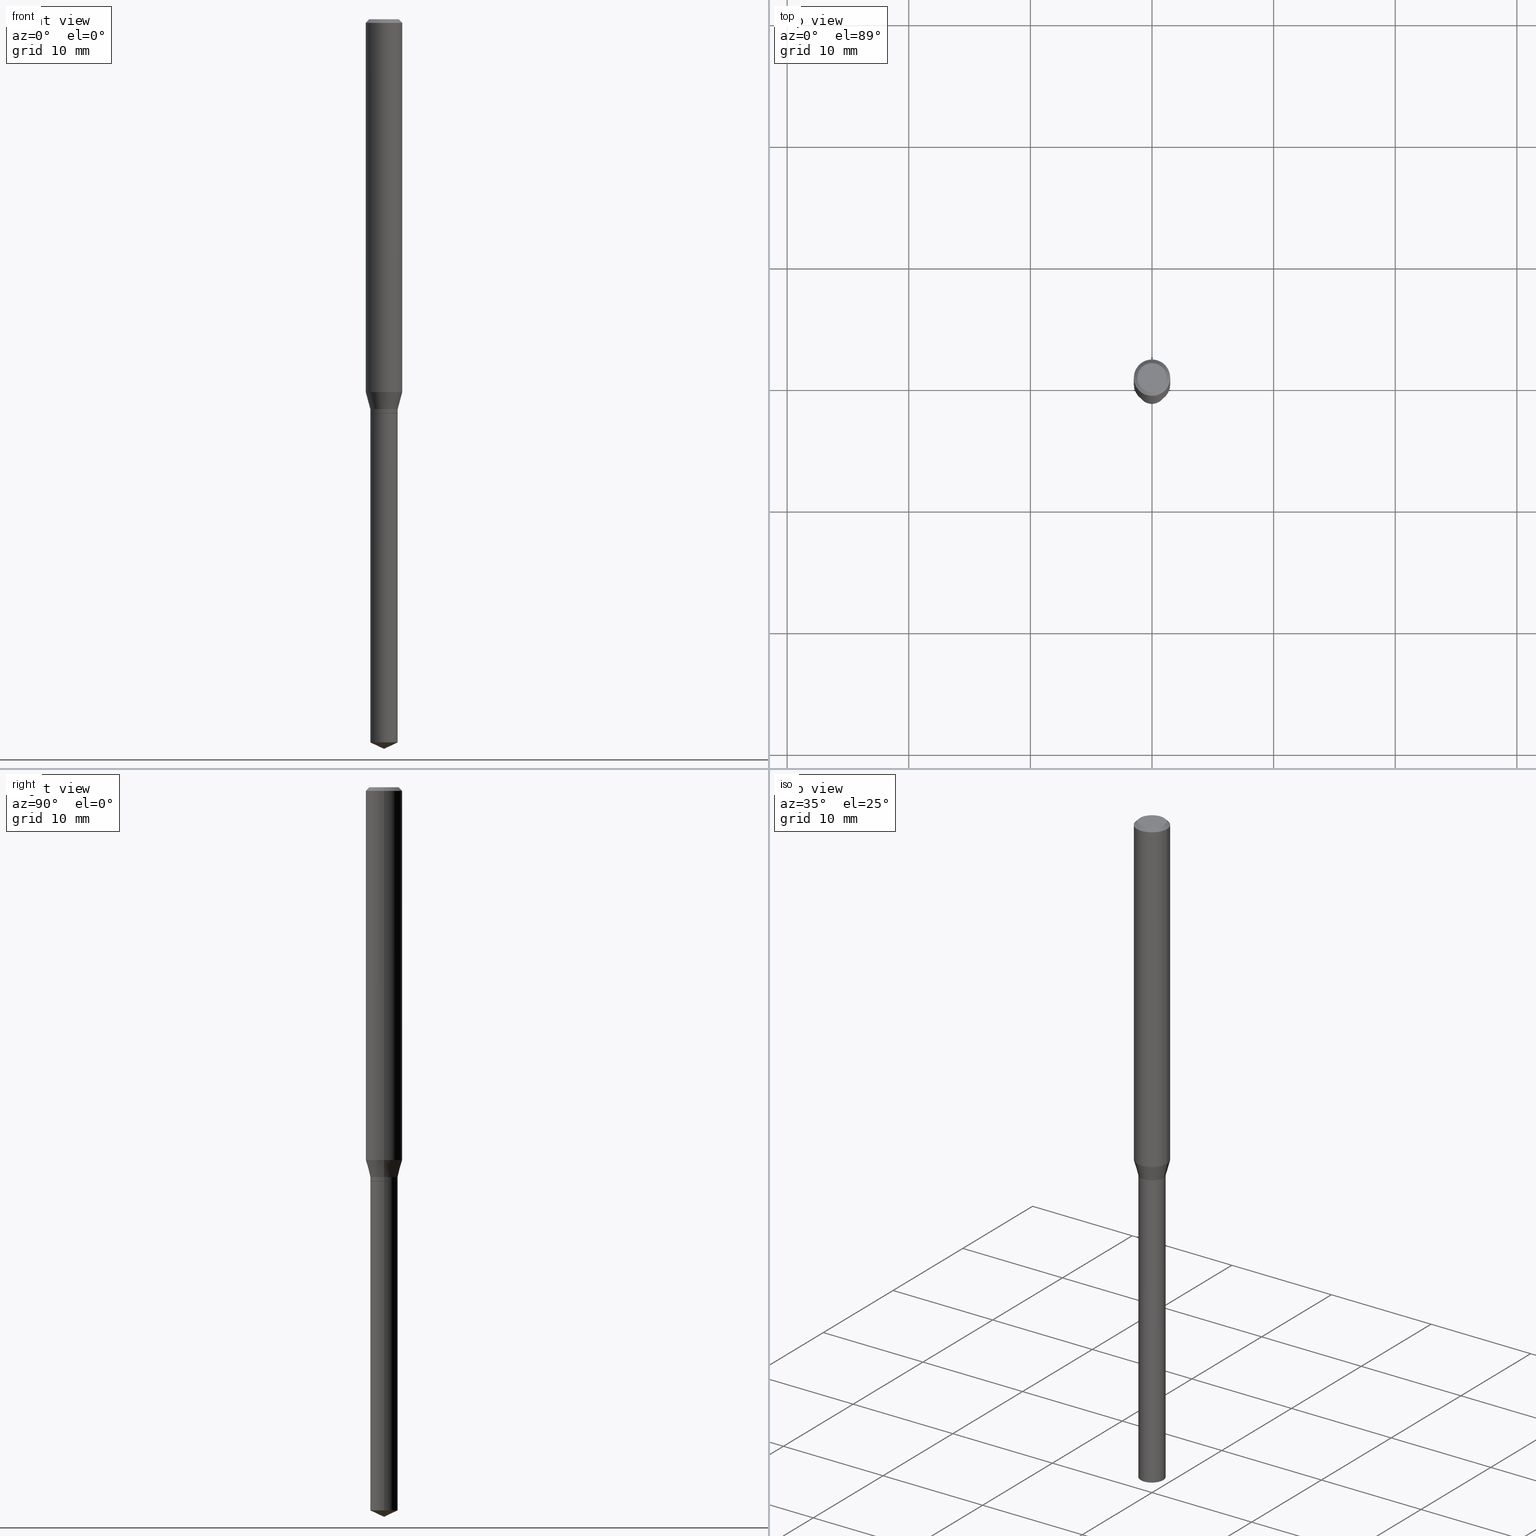
[diagram: canonical four-view strip — front | top / right | iso, engineering-drawing reading convention]
A machine part, canonical four-view strip (front | top / right | iso — engineering-drawing reading convention). The complete STEP part file that produces these views, byte-faithful:
ISO-10303-21;
HEADER;
FILE_DESCRIPTION (( 'STEP AP203' ),
    '1' );
FILE_NAME ('08197.STEP',
    '2024-04-24T13:46:05',
    ( '' ),
    ( '' ),
    'SwSTEP 2.0',
    'SolidWorks 2023',
    '' );
FILE_SCHEMA (( 'CONFIG_CONTROL_DESIGN' ));
ENDSEC;

DATA;
#1 = DIRECTION ( 'NONE',  ( 2.445468806185136597E-29, -3.491481338843145583E-15, -1.000000000000000000 ) ) ;
#2 = PLANE ( 'NONE',  #114 ) ;
#3 = VECTOR ( 'NONE', #22, 39.37007874015748854 ) ;
#4 = AXIS2_PLACEMENT_3D ( 'NONE', #166, #46, #12 ) ;
#5 = ADVANCED_FACE ( 'NONE', ( #373 ), #266, .T. ) ;
#6 = AXIS2_PLACEMENT_3D ( 'NONE', #172, #71, #102 ) ;
#7 = DIRECTION ( 'NONE',  ( 1.000000000000000000, -6.982962677686266711E-15, 0.000000000000000000 ) ) ;
#8 = EDGE_LOOP ( 'NONE', ( #482, #393 ) ) ;
#9 = CARTESIAN_POINT ( 'NONE',  ( 3.086426180286261161E-29, -4.406598597753934435E-15, -1.262100000000000222 ) ) ;
#10 = EDGE_LOOP ( 'NONE', ( #89, #58, #131 ) ) ;
#11 = EDGE_CURVE ( 'NONE', #205, #56, #146, .T. ) ;
#12 = DIRECTION ( 'NONE',  ( 1.000000000000000000, -6.982962677686269077E-15, 0.000000000000000000 ) ) ;
#13 = ORIENTED_EDGE ( 'NONE', *, *, #121, .F. ) ;
#14 = PERSON ( 'UNSPECIFIED', 'UNSPECIFIED', 'UNSPECIFIED', ('UNSPECIFIED'), ('UNSPECIFIED'), ('UNSPECIFIED') ) ;
#15 = ORIENTED_EDGE ( 'NONE', *, *, #452, .T. ) ;
#16 = DIRECTION ( 'NONE',  ( 1.000000000000000000, -6.982962677686267499E-15, 4.876176775795936353E-29 ) ) ;
#17 = ORIENTED_EDGE ( 'NONE', *, *, #129, .F. ) ;
#18 = CIRCLE ( 'NONE', #376, 0.04724000000000000421 ) ;
#19 = ORIENTED_EDGE ( 'NONE', *, *, #320, .F. ) ;
#20 = CARTESIAN_POINT ( 'NONE',  ( 3.117728181005432506E-29, -4.451289558891128871E-15, -1.274900000000000588 ) ) ;
#21 = ORIENTED_EDGE ( 'NONE', *, *, #375, .F. ) ;
#22 = DIRECTION ( 'NONE',  ( 0.2588190451025211281, 1.565188264969622954E-15, 0.9659258262890679791 ) ) ;
#23 = FACE_OUTER_BOUND ( 'NONE', #426, .T. ) ;
#24 = CIRCLE ( 'NONE', #453, 0.04430000000000001298 ) ;
#25 = CC_DESIGN_APPROVAL ( #149, ( #97 ) ) ;
#26 = CARTESIAN_POINT ( 'NONE',  ( 0.04429999999999999910, -4.762380546182051062E-15, -1.275400000000000311 ) ) ;
#27 = EDGE_CURVE ( 'NONE', #333, #280, #18, .T. ) ;
#28 = PERSON_AND_ORGANIZATION ( #14, #477 ) ;
#29 = LINE ( 'NONE', #176, #240 ) ;
#30 = DIRECTION ( 'NONE',  ( -2.445468806185136597E-29, 3.491481338843145583E-15, 1.000000000000000000 ) ) ;
#31 = COORDINATED_UNIVERSAL_TIME_OFFSET ( 5, 0, .BEHIND. ) ;
#32 = LINE ( 'NONE', #183, #427 ) ;
#33 = ADVANCED_BREP_SHAPE_REPRESENTATION ( '08197', ( #119, #246, #195 ), #454 ) ;
#34 = CALENDAR_DATE ( 2024, 24, 4 ) ;
#35 = CARTESIAN_POINT ( 'NONE',  ( 2.888098660104663766E-31, -4.123439461173779647E-17, -0.01181000000000007044 ) ) ;
#36 = DATE_AND_TIME ( #34, #191 ) ;
#37 = ADVANCED_FACE ( 'NONE', ( #98 ), #118, .T. ) ;
#38 = DIRECTION ( 'NONE',  ( -1.000000000000000000, 6.982962677686265922E-15, -4.876176775795935793E-29 ) ) ;
#39 = CARTESIAN_POINT ( 'NONE',  ( 2.888098660104663766E-31, -4.123439461173779647E-17, -0.01181000000000007044 ) ) ;
#40 = LOCAL_TIME ( 9, 46, 5.000000000000000000, #31 ) ;
#41 = DIRECTION ( 'NONE',  ( -2.445468806185136597E-29, 3.491481338843145583E-15, 1.000000000000000000 ) ) ;
#42 = CONICAL_SURFACE ( 'NONE', #485, 0.05904999999999999832, 0.7853981633974452814 ) ;
#43 = LOCAL_TIME ( 9, 46, 5.000000000000000000, #374 ) ;
#44 = DIRECTION ( 'NONE',  ( 1.000000000000000000, -6.982962677686257244E-15, 0.000000000000000000 ) ) ;
#45 = ORIENTED_EDGE ( 'NONE', *, *, #269, .T. ) ;
#46 = DIRECTION ( 'NONE',  ( -2.445468806185136597E-29, 3.491481338843145583E-15, 1.000000000000000000 ) ) ;
#47 = ORIENTED_EDGE ( 'NONE', *, *, #129, .T. ) ;
#48 = APPROVAL ( #446, 'UNSPECIFIED' ) ;
#49 = CARTESIAN_POINT ( 'NONE',  ( 3.118950915408523626E-29, -4.453035299560548797E-15, -1.275400000000000311 ) ) ;
#50 = ORIENTED_EDGE ( 'NONE', *, *, #156, .F. ) ;
#51 = AXIS2_PLACEMENT_3D ( 'NONE', #323, #307, #465 ) ;
#52 = DIRECTION ( 'NONE',  ( -2.445468806185136597E-29, 3.491481338843145583E-15, 1.000000000000000000 ) ) ;
#53 = EDGE_LOOP ( 'NONE', ( #471, #87, #462, #135 ) ) ;
#54 = CC_DESIGN_APPROVAL ( #397, ( #254 ) ) ;
#55 = EDGE_CURVE ( 'NONE', #464, #208, #29, .T. ) ;
#56 = VERTEX_POINT ( 'NONE', #444 ) ;
#57 = CARTESIAN_POINT ( 'NONE',  ( 3.118950915408523626E-29, -4.453035299560548797E-15, -1.275400000000000311 ) ) ;
#58 = ORIENTED_EDGE ( 'NONE', *, *, #163, .T. ) ;
#59 = DIRECTION ( 'NONE',  ( -2.445468806185136597E-29, 3.491481338843145583E-15, 1.000000000000000000 ) ) ;
#60 = ORIENTED_EDGE ( 'NONE', *, *, #291, .T. ) ;
#61 = PERSON_AND_ORGANIZATION ( #14, #477 ) ;
#62 = CARTESIAN_POINT ( 'NONE',  ( -0.04430000000000001298, -4.114173646380807622E-15, -1.262100000000000222 ) ) ;
#63 = LENGTH_MEASURE_WITH_UNIT ( LENGTH_MEASURE( 0.02539999999999999897 ), #293 );
#64 = ADVANCED_FACE ( 'NONE', ( #69 ), #245, .T. ) ;
#65 = VECTOR ( 'NONE', #411, 39.37007874015748143 ) ;
#66 = CARTESIAN_POINT ( 'NONE',  ( 0.04430000000000000604, -8.484099140212286517E-15, -2.341342570743733642 ) ) ;
#67 = DIRECTION ( 'NONE',  ( 1.000000000000000000, -6.982962677686269077E-15, 0.000000000000000000 ) ) ;
#68 = APPLICATION_PROTOCOL_DEFINITION ( 'international standard', 'config_control_design', 1994, #295 ) ;
#69 = FACE_OUTER_BOUND ( 'NONE', #271, .T. ) ;
#70 = PERSON_AND_ORGANIZATION_ROLE ( 'creator' ) ;
#71 = DIRECTION ( 'NONE',  ( -2.445468806185136597E-29, 3.491481338843145583E-15, 1.000000000000000000 ) ) ;
#72 = VERTEX_POINT ( 'NONE', #366 ) ;
#73 = VECTOR ( 'NONE', #338, 39.37007874015748143 ) ;
#74 = CIRCLE ( 'NONE', #326, 0.04430000000000001298 ) ;
#75 = EDGE_CURVE ( 'NONE', #207, #286, #226, .T. ) ;
#76 = CARTESIAN_POINT ( 'NONE',  ( -0.04430000000000001992, 3.147704319417245239E-16, -2.179088244982924535E-30 ) ) ;
#77 = DIRECTION ( 'NONE',  ( -0.2588190451025211281, 5.211531920934547886E-15, 0.9659258262890679791 ) ) ;
#78 = MECHANICAL_CONTEXT ( 'NONE', #309, 'mechanical' ) ;
#79 = AXIS2_PLACEMENT_3D ( 'NONE', #192, #117, #153 ) ;
#80 = EDGE_CURVE ( 'NONE', #388, #92, #111, .T. ) ;
#81 = ORIENTED_EDGE ( 'NONE', *, *, #217, .T. ) ;
#82 = FACE_OUTER_BOUND ( 'NONE', #312, .T. ) ;
#83 = CC_DESIGN_DATE_AND_TIME_ASSIGNMENT ( #112, #294, ( #343 ) ) ;
#84 = ORIENTED_EDGE ( 'NONE', *, *, #233, .F. ) ;
#85 = FACE_OUTER_BOUND ( 'NONE', #401, .T. ) ;
#86 = ORIENTED_EDGE ( 'NONE', *, *, #381, .T. ) ;
#87 = ORIENTED_EDGE ( 'NONE', *, *, #27, .F. ) ;
#88 = LINE ( 'NONE', #383, #316 ) ;
#89 = ORIENTED_EDGE ( 'NONE', *, *, #80, .F. ) ;
#90 = ORIENTED_EDGE ( 'NONE', *, *, #121, .T. ) ;
#91 = DIRECTION ( 'NONE',  ( -2.445468806185136597E-29, 3.491481338843145583E-15, 1.000000000000000000 ) ) ;
#92 = VERTEX_POINT ( 'NONE', #66 ) ;
#93 = CC_DESIGN_PERSON_AND_ORGANIZATION_ASSIGNMENT ( #264, #116, ( #258 ) ) ;
#94 = AXIS2_PLACEMENT_3D ( 'NONE', #368, #403, #442 ) ;
#95 = CARTESIAN_POINT ( 'NONE',  ( 2.951808626249396333E-29, -4.214400407937874930E-15, -1.207052250588358744 ) ) ;
#96 = ORIENTED_EDGE ( 'NONE', *, *, #163, .F. ) ;
#97 = PRODUCT_DEFINITION_FORMATION_WITH_SPECIFIED_SOURCE ( 'ANY', '', #258, .NOT_KNOWN. ) ;
#98 = FACE_OUTER_BOUND ( 'NONE', #357, .T. ) ;
#99 = CARTESIAN_POINT ( 'NONE',  ( 0.000000000000000000, 0.000000000000000000, 0.000000000000000000 ) ) ;
#100 = CALENDAR_DATE ( 2024, 24, 4 ) ;
#101 = ADVANCED_FACE ( 'NONE', ( #260 ), #257, .F. ) ;
#102 = DIRECTION ( 'NONE',  ( 1.000000000000000000, -6.982962677686257244E-15, 0.000000000000000000 ) ) ;
#103 = DIRECTION ( 'NONE',  ( -2.445468806185136597E-29, 3.491481338843145583E-15, 1.000000000000000000 ) ) ;
#104 = CARTESIAN_POINT ( 'NONE',  ( 8.265746106709734507E-48, -1.180129479067563789E-33, -3.380025165646692144E-19 ) ) ;
#105 = CC_DESIGN_PERSON_AND_ORGANIZATION_ASSIGNMENT ( #108, #70, ( #343 ) ) ;
#106 = FACE_OUTER_BOUND ( 'NONE', #200, .T. ) ;
#107 = CC_DESIGN_SECURITY_CLASSIFICATION ( #254, ( #97 ) ) ;
#108 = PERSON_AND_ORGANIZATION ( #14, #477 ) ;
#109 = CARTESIAN_POINT ( 'NONE',  ( 3.086426180286261161E-29, -4.406598597753934435E-15, -1.262100000000000222 ) ) ;
#110 = APPROVAL_DATE_TIME ( #290, #397 ) ;
#111 = LINE ( 'NONE', #138, #359 ) ;
#112 = DATE_AND_TIME ( #100, #231 ) ;
#113 = CLOSED_SHELL ( 'NONE', ( #5, #224, #64, #182, #475, #283, #308, #384, #227, #101, #199, #37 ) ) ;
#114 = AXIS2_PLACEMENT_3D ( 'NONE', #57, #216, #38 ) ;
#115 = CARTESIAN_POINT ( 'NONE',  ( 3.118950915408523626E-29, -4.453035299560548797E-15, -1.275400000000000311 ) ) ;
#116 = PERSON_AND_ORGANIZATION_ROLE ( 'design_owner' ) ;
#117 = DIRECTION ( 'NONE',  ( -2.445468806185136597E-29, 3.491481338843145583E-15, 1.000000000000000000 ) ) ;
#118 = CONICAL_SURFACE ( 'NONE', #6, 0.04379999999999999866, 0.7853981633978495136 ) ;
#119 = MANIFOLD_SOLID_BREP ( 'Body-Move/Copy2[1]', #147 ) ;
#120 = CARTESIAN_POINT ( 'NONE',  ( -0.05905000000000007465, 4.195754854663396902E-16, -2.904631170795525395E-30 ) ) ;
#121 = EDGE_CURVE ( 'NONE', #208, #470, #248, .T. ) ;
#122 = VERTEX_POINT ( 'NONE', #62 ) ;
#123 = CARTESIAN_POINT ( 'NONE',  ( 3.086426180286261161E-29, -4.406598597753934435E-15, -1.262100000000000222 ) ) ;
#124 = EDGE_LOOP ( 'NONE', ( #416, #385, #278, #126 ) ) ;
#125 = AXIS2_PLACEMENT_3D ( 'NONE', #179, #59, #251 ) ;
#126 = ORIENTED_EDGE ( 'NONE', *, *, #244, .F. ) ;
#127 = AXIS2_PLACEMENT_3D ( 'NONE', #350, #306, #198 ) ;
#128 = DIRECTION ( 'NONE',  ( -2.445468806185136597E-29, 3.491481338843145583E-15, 1.000000000000000000 ) ) ;
#129 = EDGE_CURVE ( 'NONE', #205, #464, #32, .T. ) ;
#130 = LINE ( 'NONE', #197, #136 ) ;
#131 = ORIENTED_EDGE ( 'NONE', *, *, #381, .F. ) ;
#132 = VERTEX_POINT ( 'NONE', #26 ) ;
#133 = AXIS2_PLACEMENT_3D ( 'NONE', #489, #1, #349 ) ;
#134 = FACE_OUTER_BOUND ( 'NONE', #391, .T. ) ;
#135 = ORIENTED_EDGE ( 'NONE', *, *, #75, .T. ) ;
#136 = VECTOR ( 'NONE', #389, 39.37007874015748143 ) ;
#137 = EDGE_CURVE ( 'NONE', #72, #353, #215, .T. ) ;
#138 = CARTESIAN_POINT ( 'NONE',  ( 5.776197320209293305E-29, -8.246878922347511025E-15, -2.362000000000000099 ) ) ;
#139 = CYLINDRICAL_SURFACE ( 'NONE', #155, 0.04430000000000001992 ) ;
#140 = APPROVAL_STATUS ( 'not_yet_approved' ) ;
#141 = DIMENSIONAL_EXPONENTS ( 1.000000000000000000, 0.000000000000000000, 0.000000000000000000, 0.000000000000000000, 0.000000000000000000, 0.000000000000000000, 0.000000000000000000 ) ;
#142 = PRODUCT_RELATED_PRODUCT_CATEGORY ( 'detail', '', ( #258 ) ) ;
#143 = DIRECTION ( 'NONE',  ( -2.445468806185136597E-29, 3.491481338843145583E-15, 1.000000000000000000 ) ) ;
#144 = COORDINATED_UNIVERSAL_TIME_OFFSET ( 5, 0, .BEHIND. ) ;
#145 = CARTESIAN_POINT ( 'NONE',  ( 5.776197320209293305E-29, -8.246878922347511025E-15, -2.362000000000000099 ) ) ;
#146 = CIRCLE ( 'NONE', #284, 0.04379999999999999866 ) ;
#147 = CLOSED_SHELL ( 'NONE', ( #449, #415, #466, #360, #402 ) ) ;
#148 = DIRECTION ( 'NONE',  ( 1.000000000000000000, -6.982962677686266711E-15, 0.000000000000000000 ) ) ;
#149 = APPROVAL ( #185, 'UNSPECIFIED' ) ;
#150 = PERSON_AND_ORGANIZATION ( #14, #477 ) ;
#151 = DIRECTION ( 'NONE',  ( 1.000000000000000000, -6.982962677686269077E-15, 0.000000000000000000 ) ) ;
#152 = LINE ( 'NONE', #76, #154 ) ;
#153 = DIRECTION ( 'NONE',  ( 1.000000000000000000, -6.982962677686266711E-15, 4.876185090822587894E-29 ) ) ;
#154 = VECTOR ( 'NONE', #456, 39.37007874015748143 ) ;
#155 = AXIS2_PLACEMENT_3D ( 'NONE', #99, #30, #253 ) ;
#156 = EDGE_CURVE ( 'NONE', #470, #310, #297, .T. ) ;
#157 = DIRECTION ( 'NONE',  ( 1.000000000000000000, -6.982962677686269077E-15, 0.000000000000000000 ) ) ;
#158 = CC_DESIGN_PERSON_AND_ORGANIZATION_ASSIGNMENT ( #61, #175, ( #97 ) ) ;
#159 = PLANE ( 'NONE',  #51 ) ;
#160 = ORIENTED_EDGE ( 'NONE', *, *, #329, .F. ) ;
#161 = DIRECTION ( 'NONE',  ( -2.445468806185136597E-29, 3.491481338843145583E-15, 1.000000000000000000 ) ) ;
#162 = EDGE_LOOP ( 'NONE', ( #170, #395, #21, #17 ) ) ;
#163 = EDGE_CURVE ( 'NONE', #388, #72, #483, .T. ) ;
#164 = CONICAL_SURFACE ( 'NONE', #409, 0.04430000000000001298, 0.2617993877991498519 ) ;
#165 = CC_DESIGN_APPROVAL ( #48, ( #343 ) ) ;
#166 = CARTESIAN_POINT ( 'NONE',  ( 3.118950915408523626E-29, -4.453035299560548797E-15, -1.275400000000000311 ) ) ;
#167 = ORIENTED_EDGE ( 'NONE', *, *, #255, .T. ) ;
#168 = ORIENTED_EDGE ( 'NONE', *, *, #460, .T. ) ;
#169 = CYLINDRICAL_SURFACE ( 'NONE', #4, 0.04429999999999999910 ) ;
#170 = ORIENTED_EDGE ( 'NONE', *, *, #11, .T. ) ;
#171 = LINE ( 'NONE', #249, #204 ) ;
#172 = CARTESIAN_POINT ( 'NONE',  ( 3.118950915408523626E-29, -4.453035299560548797E-15, -1.275400000000000311 ) ) ;
#173 = CIRCLE ( 'NONE', #436, 0.04429999999999999910 ) ;
#174 = EDGE_LOOP ( 'NONE', ( #433, #168, #50, #13 ) ) ;
#175 = PERSON_AND_ORGANIZATION_ROLE ( 'creator' ) ;
#176 = CARTESIAN_POINT ( 'NONE',  ( 0.04430000000000001992, -3.093452466215017723E-16, 2.160146311677600784E-30 ) ) ;
#177 = CARTESIAN_POINT ( 'NONE',  ( -9.050210213589845843E-28, 1.292130163076976058E-13, 37.00807874015747956 ) ) ;
#178 = PRODUCT_DEFINITION_SHAPE ( 'NONE', 'NONE',  #343 ) ;
#179 = CARTESIAN_POINT ( 'NONE',  ( 0.000000000000000000, 0.000000000000000000, 0.000000000000000000 ) ) ;
#180 = CARTESIAN_POINT ( 'NONE',  ( -0.04379999999999999866, -4.141817581297625270E-15, -1.275400000000000311 ) ) ;
#181 = CALENDAR_DATE ( 2024, 24, 4 ) ;
#182 = ADVANCED_FACE ( 'NONE', ( #448 ), #476, .T. ) ;
#183 = CARTESIAN_POINT ( 'NONE',  ( 0.04379999999999999866, -4.758889064843207266E-15, -1.275400000000000311 ) ) ;
#184 = CIRCLE ( 'NONE', #252, 0.04430000000000001992 ) ;
#185 = APPROVAL_STATUS ( 'not_yet_approved' ) ;
#186 = DIRECTION ( 'NONE',  ( 1.000000000000000000, -6.982962677686266711E-15, 4.876185090822587894E-29 ) ) ;
#187 = CALENDAR_DATE ( 2024, 24, 4 ) ;
#188 = EDGE_CURVE ( 'NONE', #286, #207, #274, .T. ) ;
#189 = DIRECTION ( 'NONE',  ( -2.445468806185136597E-29, 3.491481338843145583E-15, 1.000000000000000000 ) ) ;
#190 = AXIS2_PLACEMENT_3D ( 'NONE', #212, #438, #327 ) ;
#191 = LOCAL_TIME ( 9, 46, 5.000000000000000000, #223 ) ;
#192 = CARTESIAN_POINT ( 'NONE',  ( 8.265746106709734507E-48, -1.180129479067563789E-33, -3.380025165646692144E-19 ) ) ;
#193 = DESIGN_CONTEXT ( 'detailed design', #295, 'design' ) ;
#194 = CARTESIAN_POINT ( 'NONE',  ( -0.04429999999999999910, -5.999124164633942099E-15, -1.275400000000000311 ) ) ;
#195 = AXIS2_PLACEMENT_3D ( 'NONE', #332, #445, #420 ) ;
#196 = ORIENTED_EDGE ( 'NONE', *, *, #244, .T. ) ;
#197 = CARTESIAN_POINT ( 'NONE',  ( 0.04429999999999999910, -4.762380546182051062E-15, -1.275400000000000311 ) ) ;
#198 = DIRECTION ( 'NONE',  ( 1.000000000000000000, -6.982962677686265922E-15, 0.000000000000000000 ) ) ;
#199 = ADVANCED_FACE ( 'NONE', ( #382 ), #159, .F. ) ;
#200 = EDGE_LOOP ( 'NONE', ( #86, #273, #237, #160 ) ) ;
#201 = DIRECTION ( 'NONE',  ( -2.445468806185136877E-29, 3.491481338843145188E-15, 1.000000000000000000 ) ) ;
#202 = ORIENTED_EDGE ( 'NONE', *, *, #80, .T. ) ;
#203 = AXIS2_PLACEMENT_3D ( 'NONE', #49, #128, #430 ) ;
#204 = VECTOR ( 'NONE', #77, 39.37007874015748854 ) ;
#205 = VERTEX_POINT ( 'NONE', #313 ) ;
#206 = DIRECTION ( 'NONE',  ( 1.000000000000000000, -6.982962677686266711E-15, 4.876176775795936353E-29 ) ) ;
#207 = VERTEX_POINT ( 'NONE', #235 ) ;
#208 = VERTEX_POINT ( 'NONE', #342 ) ;
#209 = DIRECTION ( 'NONE',  ( -2.445468806185136877E-29, 3.491481338843145188E-15, 1.000000000000000000 ) ) ;
#210 = EDGE_CURVE ( 'NONE', #280, #333, #351, .T. ) ;
#211 = PERSON_AND_ORGANIZATION ( #14, #477 ) ;
#212 = CARTESIAN_POINT ( 'NONE',  ( 3.118950915408523626E-29, -4.453035299560548797E-15, -1.275400000000000311 ) ) ;
#213 = AXIS2_PLACEMENT_3D ( 'NONE', #481, #143, #334 ) ;
#214 = APPROVAL_PERSON_ORGANIZATION ( #28, #48, #440 ) ;
#215 = LINE ( 'NONE', #331, #73 ) ;
#216 = DIRECTION ( 'NONE',  ( 2.438088387897960049E-29, -3.491481338843145188E-15, -1.000000000000000000 ) ) ;
#217 = EDGE_CURVE ( 'NONE', #390, #122, #152, .T. ) ;
#218 = PERSON_AND_ORGANIZATION_ROLE ( 'classification_officer' ) ;
#219 = DIRECTION ( 'NONE',  ( 0.7071067811868312347, -2.468850131085228700E-15, 0.7071067811862637997 ) ) ;
#220 = APPROVAL_ROLE ( '' ) ;
#221 = DIRECTION ( 'NONE',  ( -2.445468806185136597E-29, 3.491481338843145583E-15, 1.000000000000000000 ) ) ;
#222 = CONICAL_SURFACE ( 'NONE', #133, 0.05904999999999999832, 0.7853981633974452814 ) ;
#223 = COORDINATED_UNIVERSAL_TIME_OFFSET ( 5, 0, .BEHIND. ) ;
#224 = ADVANCED_FACE ( 'NONE', ( #457 ), #222, .T. ) ;
#225 = DIRECTION ( 'NONE',  ( -2.445468806185136597E-29, 3.491481338843145583E-15, 1.000000000000000000 ) ) ;
#226 = CIRCLE ( 'NONE', #345, 0.05904999999999999832 ) ;
#227 = ADVANCED_FACE ( 'NONE', ( #451 ), #42, .T. ) ;
#228 = CARTESIAN_POINT ( 'NONE',  ( 0.05904999999999999832, -4.535783407291118600E-16, -0.01181000000000007044 ) ) ;
#229 = ORIENTED_EDGE ( 'NONE', *, *, #55, .T. ) ;
#230 = DIRECTION ( 'NONE',  ( -2.445468806185136597E-29, 3.491481338843145583E-15, 1.000000000000000000 ) ) ;
#231 = LOCAL_TIME ( 9, 46, 5.000000000000000000, #144 ) ;
#232 = ORIENTED_EDGE ( 'NONE', *, *, #303, .T. ) ;
#233 = EDGE_CURVE ( 'NONE', #72, #92, #173, .T. ) ;
#234 = CARTESIAN_POINT ( 'NONE',  ( 0.05905000000000007465, -4.123439461173745750E-16, 2.879382386107504074E-30 ) ) ;
#235 = CARTESIAN_POINT ( 'NONE',  ( -0.05904999999999999832, -1.708241915808465850E-15, -0.01181000000000007044 ) ) ;
#236 = DIRECTION ( 'NONE',  ( -2.445468806185136597E-29, 3.491481338843145583E-15, 1.000000000000000000 ) ) ;
#237 = ORIENTED_EDGE ( 'NONE', *, *, #441, .F. ) ;
#238 = ORIENTED_EDGE ( 'NONE', *, *, #188, .T. ) ;
#239 = CYLINDRICAL_SURFACE ( 'NONE', #285, 0.05905000000000007465 ) ;
#240 = VECTOR ( 'NONE', #209, 39.37007874015748143 ) ;
#241 = CIRCLE ( 'NONE', #437, 0.04429999999999999910 ) ;
#242 = ORIENTED_EDGE ( 'NONE', *, *, #217, .F. ) ;
#243 = ORIENTED_EDGE ( 'NONE', *, *, #460, .F. ) ;
#244 = EDGE_CURVE ( 'NONE', #353, #132, #417, .T. ) ;
#245 = CYLINDRICAL_SURFACE ( 'NONE', #125, 0.05905000000000007465 ) ;
#246 = MANIFOLD_SOLID_BREP ( 'Body-Move/Copy2[2]', #113 ) ;
#247 = COORDINATED_UNIVERSAL_TIME_OFFSET ( 5, 0, .BEHIND. ) ;
#248 = LINE ( 'NONE', #406, #3 ) ;
#249 = CARTESIAN_POINT ( 'NONE',  ( -0.04430000000000001298, -4.091828165812210010E-15, -1.262100000000000222 ) ) ;
#250 = PERSON_AND_ORGANIZATION ( #14, #477 ) ;
#251 = DIRECTION ( 'NONE',  ( 1.000000000000000000, -6.982962677686266711E-15, 4.876176775795936353E-29 ) ) ;
#252 = AXIS2_PLACEMENT_3D ( 'NONE', #20, #318, #281 ) ;
#253 = DIRECTION ( 'NONE',  ( 1.000000000000000000, -6.982962677686267499E-15, 4.876176775795936353E-29 ) ) ;
#254 = SECURITY_CLASSIFICATION ( '', '', #330 ) ;
#255 = EDGE_CURVE ( 'NONE', #122, #208, #24, .T. ) ;
#256 = PERSON_AND_ORGANIZATION_ROLE ( 'design_supplier' ) ;
#257 = PLANE ( 'NONE',  #94 ) ;
#258 = PRODUCT ( '08197', '08197', '', ( #78 ) ) ;
#259 = DATE_AND_TIME ( #187, #43 ) ;
#260 = FACE_OUTER_BOUND ( 'NONE', #8, .T. ) ;
#261 = AXIS2_PLACEMENT_3D ( 'NONE', #450, #221, #377 ) ;
#262 = CIRCLE ( 'NONE', #459, 0.05905000000000015098 ) ;
#263 = CARTESIAN_POINT ( 'NONE',  ( 3.118950915408523626E-29, -4.453035299560548797E-15, -1.275400000000000311 ) ) ;
#264 = PERSON_AND_ORGANIZATION ( #14, #477 ) ;
#265 = EDGE_CURVE ( 'NONE', #310, #207, #311, .T. ) ;
#266 = CONICAL_SURFACE ( 'NONE', #190, 0.04379999999999999866, 0.7853981633978495136 ) ;
#267 = APPROVAL_PERSON_ORGANIZATION ( #211, #397, #372 ) ;
#268 = CARTESIAN_POINT ( 'NONE',  ( 0.04724000000000000421, -3.852183633974369345E-16, -3.380025165621689721E-19 ) ) ;
#269 = EDGE_CURVE ( 'NONE', #56, #205, #301, .T. ) ;
#270 = UNCERTAINTY_MEASURE_WITH_UNIT (LENGTH_MEASURE( 1.000000000000000082E-05 ), #344, 'distance_accuracy_value', 'NONE');
#271 = EDGE_LOOP ( 'NONE', ( #315, #355, #488, #324 ) ) ;
#272 = DIRECTION ( 'NONE',  ( 1.000000000000000000, -6.982962677686266711E-15, 0.000000000000000000 ) ) ;
#273 = ORIENTED_EDGE ( 'NONE', *, *, #137, .T. ) ;
#274 = CIRCLE ( 'NONE', #261, 0.05904999999999999832 ) ;
#275 = CONICAL_SURFACE ( 'NONE', #423, 84.42940631927434936, 1.134464013796316006 ) ;
#276 = ORIENTED_EDGE ( 'NONE', *, *, #255, .F. ) ;
#277 = CARTESIAN_POINT ( 'NONE',  ( 3.086426180286261161E-29, -4.406598597753934435E-15, -1.262100000000000222 ) ) ;
#278 = ORIENTED_EDGE ( 'NONE', *, *, #329, .T. ) ;
#279 = DIRECTION ( 'NONE',  ( 1.000000000000000000, -6.982962677686269077E-15, 0.000000000000000000 ) ) ;
#280 = VERTEX_POINT ( 'NONE', #268 ) ;
#281 = DIRECTION ( 'NONE',  ( 1.000000000000000000, -6.982962677686265922E-15, 0.000000000000000000 ) ) ;
#282 = EDGE_LOOP ( 'NONE', ( #363, #399 ) ) ;
#283 = ADVANCED_FACE ( 'NONE', ( #85 ), #434, .T. ) ;
#284 = AXIS2_PLACEMENT_3D ( 'NONE', #414, #370, #299 ) ;
#285 = AXIS2_PLACEMENT_3D ( 'NONE', #394, #52, #206 ) ;
#286 = VERTEX_POINT ( 'NONE', #228 ) ;
#287 = DIRECTION ( 'NONE',  ( 1.000000000000000000, -6.982962677686266711E-15, 0.000000000000000000 ) ) ;
#288 = DIRECTION ( 'NONE',  ( 1.000000000000000000, -6.982962677686266711E-15, 0.000000000000000000 ) ) ;
#289 = DIRECTION ( 'NONE',  ( -2.445468806185136597E-29, 3.491481338843145583E-15, 1.000000000000000000 ) ) ;
#290 = DATE_AND_TIME ( #181, #40 ) ;
#291 = EDGE_CURVE ( 'NONE', #390, #464, #184, .T. ) ;
#292 = ORIENTED_EDGE ( 'NONE', *, *, #55, .F. ) ;
#293 =( LENGTH_UNIT ( ) NAMED_UNIT ( * ) SI_UNIT ( $, .METRE. ) );
#294 = DATE_TIME_ROLE ( 'creation_date' ) ;
#295 = APPLICATION_CONTEXT ( 'configuration controlled 3d designs of mechanical parts and assemblies' ) ;
#296 = DIRECTION ( 'NONE',  ( -0.9063077870366507138, 7.915267918739014631E-15, 0.4226182617406978315 ) ) ;
#297 = CIRCLE ( 'NONE', #213, 0.05905000000000015098 ) ;
#298 = CIRCLE ( 'NONE', #127, 0.04430000000000001992 ) ;
#299 = DIRECTION ( 'NONE',  ( 1.000000000000000000, -6.982962677686257244E-15, 0.000000000000000000 ) ) ;
#300 =( NAMED_UNIT ( * ) SI_UNIT ( $, .STERADIAN. ) SOLID_ANGLE_UNIT ( ) );
#301 = CIRCLE ( 'NONE', #337, 0.04379999999999999866 ) ;
#302 = CC_DESIGN_PERSON_AND_ORGANIZATION_ASSIGNMENT ( #150, #256, ( #97 ) ) ;
#303 = EDGE_CURVE ( 'NONE', #470, #286, #424, .T. ) ;
#304 = VECTOR ( 'NONE', #296, 39.37007874015748143 ) ;
#305 = CIRCLE ( 'NONE', #378, 0.04429999999999999910 ) ;
#306 = DIRECTION ( 'NONE',  ( -2.445468806185136597E-29, 3.491481338843145583E-15, 1.000000000000000000 ) ) ;
#307 = DIRECTION ( 'NONE',  ( -2.438088387897960049E-29, 3.491481338843145188E-15, 1.000000000000000000 ) ) ;
#308 = ADVANCED_FACE ( 'NONE', ( #82 ), #164, .T. ) ;
#309 = APPLICATION_CONTEXT ( 'configuration controlled 3d designs of mechanical parts and assemblies' ) ;
#310 = VERTEX_POINT ( 'NONE', #354 ) ;
#311 = LINE ( 'NONE', #120, #447 ) ;
#312 = EDGE_LOOP ( 'NONE', ( #243, #167, #90, #322 ) ) ;
#313 = CARTESIAN_POINT ( 'NONE',  ( 0.04379999999999999866, -4.758889064843207266E-15, -1.275400000000000311 ) ) ;
#314 = CARTESIAN_POINT ( 'NONE',  ( 0.000000000000000000, 0.000000000000000000, 0.000000000000000000 ) ) ;
#315 = ORIENTED_EDGE ( 'NONE', *, *, #156, .T. ) ;
#316 = VECTOR ( 'NONE', #392, 39.37007874015748143 ) ;
#317 = AXIS2_PLACEMENT_3D ( 'NONE', #177, #225, #484 ) ;
#318 = DIRECTION ( 'NONE',  ( -2.445468806185136597E-29, 3.491481338843145583E-15, 1.000000000000000000 ) ) ;
#319 = ORIENTED_EDGE ( 'NONE', *, *, #375, .T. ) ;
#320 = EDGE_CURVE ( 'NONE', #333, #207, #88, .T. ) ;
#321 = DIRECTION ( 'NONE',  ( 1.000000000000000000, -6.982962677686266711E-15, 0.000000000000000000 ) ) ;
#322 = ORIENTED_EDGE ( 'NONE', *, *, #452, .F. ) ;
#323 = CARTESIAN_POINT ( 'NONE',  ( 3.118950915408523626E-29, -4.453035299560548797E-15, -1.275400000000000311 ) ) ;
#324 = ORIENTED_EDGE ( 'NONE', *, *, #303, .F. ) ;
#325 = CARTESIAN_POINT ( 'NONE',  ( 0.05905000000000015098, -4.626744354055249850E-15, -1.207052250588358744 ) ) ;
#326 = AXIS2_PLACEMENT_3D ( 'NONE', #9, #91, #272 ) ;
#327 = DIRECTION ( 'NONE',  ( 1.000000000000000000, -6.982962677686257244E-15, 0.000000000000000000 ) ) ;
#328 = APPLICATION_PROTOCOL_DEFINITION ( 'international standard', 'config_control_design', 1994, #309 ) ;
#329 = EDGE_CURVE ( 'NONE', #92, #132, #130, .T. ) ;
#330 = SECURITY_CLASSIFICATION_LEVEL ( 'unclassified' ) ;
#331 = CARTESIAN_POINT ( 'NONE',  ( -0.04429999999999999910, -4.138264867618825161E-15, -1.275400000000000311 ) ) ;
#332 = CARTESIAN_POINT ( 'NONE',  ( 0.000000000000000000, 0.000000000000000000, 0.000000000000000000 ) ) ;
#333 = VERTEX_POINT ( 'NONE', #386 ) ;
#334 = DIRECTION ( 'NONE',  ( 1.000000000000000000, -6.982962677686271444E-15, 0.000000000000000000 ) ) ;
#335 = DIRECTION ( 'NONE',  ( 1.000000000000000000, -6.982962677686271444E-15, 0.000000000000000000 ) ) ;
#336 = SHAPE_DEFINITION_REPRESENTATION ( #178, #33 ) ;
#337 = AXIS2_PLACEMENT_3D ( 'NONE', #358, #236, #44 ) ;
#338 = DIRECTION ( 'NONE',  ( -2.445468806185136877E-29, 3.491481338843145188E-15, 1.000000000000000000 ) ) ;
#339 = ORIENTED_EDGE ( 'NONE', *, *, #210, .F. ) ;
#340 = APPROVAL_DATE_TIME ( #259, #149 ) ;
#341 = DIRECTION ( 'NONE',  ( -2.445468806185136597E-29, 3.491481338843145583E-15, 1.000000000000000000 ) ) ;
#342 = CARTESIAN_POINT ( 'NONE',  ( 0.04430000000000001298, -4.715943844375435912E-15, -1.262100000000000222 ) ) ;
#343 = PRODUCT_DEFINITION ( 'UNKNOWN', '', #97, #193 ) ;
#344 =( CONVERSION_BASED_UNIT ( 'INCH', #63 ) LENGTH_UNIT ( ) NAMED_UNIT ( #141 ) );
#345 = AXIS2_PLACEMENT_3D ( 'NONE', #35, #341, #288 ) ;
#346 = DIRECTION ( 'NONE',  ( 2.445468806185136597E-29, -3.491481338843145583E-15, -1.000000000000000000 ) ) ;
#347 = CONICAL_SURFACE ( 'NONE', #317, 84.42940631927434936, 1.134464013796316006 ) ;
#348 = EDGE_CURVE ( 'NONE', #208, #122, #74, .T. ) ;
#349 = DIRECTION ( 'NONE',  ( -1.000000000000000000, 6.982962677686266711E-15, 0.000000000000000000 ) ) ;
#350 = CARTESIAN_POINT ( 'NONE',  ( 3.117728181005432506E-29, -4.451289558891128871E-15, -1.274900000000000588 ) ) ;
#351 = CIRCLE ( 'NONE', #79, 0.04724000000000000421 ) ;
#352 = VECTOR ( 'NONE', #371, 39.37007874015748143 ) ;
#353 = VERTEX_POINT ( 'NONE', #194 ) ;
#354 = CARTESIAN_POINT ( 'NONE',  ( -0.05905000000000015098, -3.794824922471535437E-15, -1.207052250588358744 ) ) ;
#355 = ORIENTED_EDGE ( 'NONE', *, *, #265, .T. ) ;
#356 = DIRECTION ( 'NONE',  ( -2.445468806185136597E-29, 3.491481338843145583E-15, 1.000000000000000000 ) ) ;
#357 = EDGE_LOOP ( 'NONE', ( #428, #45, #47, #412 ) ) ;
#358 = CARTESIAN_POINT ( 'NONE',  ( 3.118950915408523626E-29, -4.453035299560548797E-15, -1.275400000000000311 ) ) ;
#359 = VECTOR ( 'NONE', #410, 39.37007874015748143 ) ;
#360 = ADVANCED_FACE ( 'NONE', ( #472 ), #169, .T. ) ;
#361 = ORIENTED_EDGE ( 'NONE', *, *, #419, .T. ) ;
#362 = CARTESIAN_POINT ( 'NONE',  ( 5.776197320209293305E-29, -8.246878922347511025E-15, -2.362000000000000099 ) ) ;
#363 = ORIENTED_EDGE ( 'NONE', *, *, #11, .F. ) ;
#364 = ORIENTED_EDGE ( 'NONE', *, *, #75, .F. ) ;
#365 = CARTESIAN_POINT ( 'NONE',  ( 0.04430000000000001992, -4.760634805512630348E-15, -1.274900000000000588 ) ) ;
#366 = CARTESIAN_POINT ( 'NONE',  ( -0.04430000000000000604, -7.859983461649060616E-15, -2.341342570743733642 ) ) ;
#367 = FACE_OUTER_BOUND ( 'NONE', #474, .T. ) ;
#368 = CARTESIAN_POINT ( 'NONE',  ( 4.132873053354867254E-48, -5.900647395337818946E-34, -1.690012582823346072E-19 ) ) ;
#369 =( NAMED_UNIT ( * ) PLANE_ANGLE_UNIT ( ) SI_UNIT ( $, .RADIAN. ) );
#370 = DIRECTION ( 'NONE',  ( -2.445468806185136597E-29, 3.491481338843145583E-15, 1.000000000000000000 ) ) ;
#371 = DIRECTION ( 'NONE',  ( 0.7071067811865453523, -7.319954787623248157E-15, -0.7071067811865496822 ) ) ;
#372 = APPROVAL_ROLE ( '' ) ;
#373 = FACE_OUTER_BOUND ( 'NONE', #162, .T. ) ;
#374 = COORDINATED_UNIVERSAL_TIME_OFFSET ( 5, 0, .BEHIND. ) ;
#375 = EDGE_CURVE ( 'NONE', #464, #390, #298, .T. ) ;
#376 = AXIS2_PLACEMENT_3D ( 'NONE', #104, #487, #186 ) ;
#377 = DIRECTION ( 'NONE',  ( 1.000000000000000000, -6.982962677686266711E-15, 0.000000000000000000 ) ) ;
#378 = AXIS2_PLACEMENT_3D ( 'NONE', #461, #161, #279 ) ;
#379 = PERSON_AND_ORGANIZATION ( #14, #477 ) ;
#380 = LINE ( 'NONE', #180, #65 ) ;
#381 = EDGE_CURVE ( 'NONE', #92, #72, #305, .T. ) ;
#382 = FACE_OUTER_BOUND ( 'NONE', #282, .T. ) ;
#383 = CARTESIAN_POINT ( 'NONE',  ( -0.05904999999999999832, 3.711095515056362547E-16, -0.01181000000000007044 ) ) ;
#384 = ADVANCED_FACE ( 'NONE', ( #432 ), #239, .T. ) ;
#385 = ORIENTED_EDGE ( 'NONE', *, *, #233, .T. ) ;
#386 = CARTESIAN_POINT ( 'NONE',  ( -0.04724000000000000421, 3.504923541997677355E-16, -3.380025165670481712E-19 ) ) ;
#387 = LOCAL_TIME ( 9, 46, 5.000000000000000000, #247 ) ;
#388 = VERTEX_POINT ( 'NONE', #362 ) ;
#389 = DIRECTION ( 'NONE',  ( -2.445468806185136877E-29, 3.491481338843145188E-15, 1.000000000000000000 ) ) ;
#390 = VERTEX_POINT ( 'NONE', #473 ) ;
#391 = EDGE_LOOP ( 'NONE', ( #478, #196 ) ) ;
#392 = DIRECTION ( 'NONE',  ( -0.7071067811865453523, 2.468850131082234184E-15, -0.7071067811865496822 ) ) ;
#393 = ORIENTED_EDGE ( 'NONE', *, *, #210, .T. ) ;
#394 = CARTESIAN_POINT ( 'NONE',  ( 0.000000000000000000, 0.000000000000000000, 0.000000000000000000 ) ) ;
#395 = ORIENTED_EDGE ( 'NONE', *, *, #429, .T. ) ;
#396 = AXIS2_PLACEMENT_3D ( 'NONE', #314, #41, #16 ) ;
#397 = APPROVAL ( #140, 'UNSPECIFIED' ) ;
#398 = AXIS2_PLACEMENT_3D ( 'NONE', #263, #479, #151 ) ;
#399 = ORIENTED_EDGE ( 'NONE', *, *, #269, .F. ) ;
#400 = CYLINDRICAL_SURFACE ( 'NONE', #398, 0.04429999999999999910 ) ;
#401 = EDGE_LOOP ( 'NONE', ( #242, #60, #229, #276 ) ) ;
#402 = ADVANCED_FACE ( 'NONE', ( #134 ), #2, .F. ) ;
#403 = DIRECTION ( 'NONE',  ( 2.438088387897960049E-29, -3.491481338843145188E-15, -1.000000000000000000 ) ) ;
#404 = ORIENTED_EDGE ( 'NONE', *, *, #265, .F. ) ;
#405 = DATE_TIME_ROLE ( 'classification_date' ) ;
#406 = CARTESIAN_POINT ( 'NONE',  ( 0.04430000000000001298, -4.715943844375435912E-15, -1.262100000000000222 ) ) ;
#407 = CC_DESIGN_PERSON_AND_ORGANIZATION_ASSIGNMENT ( #250, #218, ( #254 ) ) ;
#408 = LINE ( 'NONE', #439, #352 ) ;
#409 = AXIS2_PLACEMENT_3D ( 'NONE', #123, #230, #7 ) ;
#410 = DIRECTION ( 'NONE',  ( 0.9063077870366507138, -4.853149677051390623E-15, 0.4226182617406978315 ) ) ;
#411 = DIRECTION ( 'NONE',  ( -0.7071067811868312347, 7.493145998871379679E-15, 0.7071067811862637997 ) ) ;
#412 = ORIENTED_EDGE ( 'NONE', *, *, #291, .F. ) ;
#413 = DATE_AND_TIME ( #480, #387 ) ;
#414 = CARTESIAN_POINT ( 'NONE',  ( 3.118950915408523626E-29, -4.453035299560548797E-15, -1.275400000000000311 ) ) ;
#415 = ADVANCED_FACE ( 'NONE', ( #418 ), #275, .T. ) ;
#416 = ORIENTED_EDGE ( 'NONE', *, *, #137, .F. ) ;
#417 = CIRCLE ( 'NONE', #203, 0.04429999999999999910 ) ;
#418 = FACE_OUTER_BOUND ( 'NONE', #10, .T. ) ;
#419 = EDGE_CURVE ( 'NONE', #280, #286, #408, .T. ) ;
#420 = DIRECTION ( 'NONE',  ( 1.000000000000000000, 0.000000000000000000, 0.000000000000000000 ) ) ;
#421 = DIRECTION ( 'NONE',  ( -1.000000000000000000, 6.982962677686266711E-15, 0.000000000000000000 ) ) ;
#422 = AXIS2_PLACEMENT_3D ( 'NONE', #109, #486, #148 ) ;
#423 = AXIS2_PLACEMENT_3D ( 'NONE', #443, #103, #287 ) ;
#424 = LINE ( 'NONE', #234, #458 ) ;
#425 = DIRECTION ( 'NONE',  ( -2.445468806185136597E-29, 3.491481338843145583E-15, 1.000000000000000000 ) ) ;
#426 = EDGE_LOOP ( 'NONE', ( #96, #202, #84 ) ) ;
#427 = VECTOR ( 'NONE', #219, 39.37007874015748143 ) ;
#428 = ORIENTED_EDGE ( 'NONE', *, *, #429, .F. ) ;
#429 = EDGE_CURVE ( 'NONE', #56, #390, #380, .T. ) ;
#430 = DIRECTION ( 'NONE',  ( 1.000000000000000000, -6.982962677686269077E-15, 0.000000000000000000 ) ) ;
#431 = EDGE_LOOP ( 'NONE', ( #339, #361, #238, #19 ) ) ;
#432 = FACE_OUTER_BOUND ( 'NONE', #469, .T. ) ;
#433 = ORIENTED_EDGE ( 'NONE', *, *, #348, .T. ) ;
#434 = CYLINDRICAL_SURFACE ( 'NONE', #396, 0.04430000000000001992 ) ;
#435 = ORIENTED_EDGE ( 'NONE', *, *, #348, .F. ) ;
#436 = AXIS2_PLACEMENT_3D ( 'NONE', #467, #356, #157 ) ;
#437 = AXIS2_PLACEMENT_3D ( 'NONE', #115, #289, #67 ) ;
#438 = DIRECTION ( 'NONE',  ( -2.445468806185136597E-29, 3.491481338843145583E-15, 1.000000000000000000 ) ) ;
#439 = CARTESIAN_POINT ( 'NONE',  ( 0.05904999999999999832, -4.463468013801466955E-16, -0.01181000000000007044 ) ) ;
#440 = APPROVAL_ROLE ( '' ) ;
#441 = EDGE_CURVE ( 'NONE', #132, #353, #241, .T. ) ;
#442 = DIRECTION ( 'NONE',  ( -1.000000000000000000, 6.982962677686265922E-15, -4.876176775795935793E-29 ) ) ;
#443 = CARTESIAN_POINT ( 'NONE',  ( -9.050210213589845843E-28, 1.292130163076976058E-13, 37.00807874015747956 ) ) ;
#444 = CARTESIAN_POINT ( 'NONE',  ( -0.04379999999999999866, -4.139168354123514858E-15, -1.275400000000000311 ) ) ;
#445 = DIRECTION ( 'NONE',  ( 0.000000000000000000, 0.000000000000000000, 1.000000000000000000 ) ) ;
#446 = APPROVAL_STATUS ( 'not_yet_approved' ) ;
#447 = VECTOR ( 'NONE', #201, 39.37007874015748143 ) ;
#448 = FACE_OUTER_BOUND ( 'NONE', #174, .T. ) ;
#449 = ADVANCED_FACE ( 'NONE', ( #106 ), #400, .T. ) ;
#450 = CARTESIAN_POINT ( 'NONE',  ( 2.888098660104663766E-31, -4.123439461173779647E-17, -0.01181000000000007044 ) ) ;
#451 = FACE_OUTER_BOUND ( 'NONE', #53, .T. ) ;
#452 = EDGE_CURVE ( 'NONE', #310, #470, #262, .T. ) ;
#453 = AXIS2_PLACEMENT_3D ( 'NONE', #277, #425, #321 ) ;
#454 =( GEOMETRIC_REPRESENTATION_CONTEXT ( 3 ) GLOBAL_UNCERTAINTY_ASSIGNED_CONTEXT ( ( #270 ) ) GLOBAL_UNIT_ASSIGNED_CONTEXT ( ( #344, #369, #300 ) ) REPRESENTATION_CONTEXT ( 'NONE', 'WORKASPACE' ) );
#455 = CC_DESIGN_DATE_AND_TIME_ASSIGNMENT ( #413, #405, ( #254 ) ) ;
#456 = DIRECTION ( 'NONE',  ( -2.445468806185136877E-29, 3.491481338843145188E-15, 1.000000000000000000 ) ) ;
#457 = FACE_OUTER_BOUND ( 'NONE', #431, .T. ) ;
#458 = VECTOR ( 'NONE', #463, 39.37007874015748143 ) ;
#459 = AXIS2_PLACEMENT_3D ( 'NONE', #95, #189, #335 ) ;
#460 = EDGE_CURVE ( 'NONE', #122, #310, #171, .T. ) ;
#461 = CARTESIAN_POINT ( 'NONE',  ( 5.725680221347117002E-29, -8.174753893590783463E-15, -2.341342570743733642 ) ) ;
#462 = ORIENTED_EDGE ( 'NONE', *, *, #320, .T. ) ;
#463 = DIRECTION ( 'NONE',  ( -2.445468806185136877E-29, 3.491481338843145188E-15, 1.000000000000000000 ) ) ;
#464 = VERTEX_POINT ( 'NONE', #365 ) ;
#465 = DIRECTION ( 'NONE',  ( 1.000000000000000000, -6.982962677686265922E-15, 4.876176775795935793E-29 ) ) ;
#466 = ADVANCED_FACE ( 'NONE', ( #23 ), #347, .T. ) ;
#467 = CARTESIAN_POINT ( 'NONE',  ( 5.725680221347117002E-29, -8.174753893590783463E-15, -2.341342570743733642 ) ) ;
#468 = APPROVAL_PERSON_ORGANIZATION ( #379, #149, #220 ) ;
#469 = EDGE_LOOP ( 'NONE', ( #404, #15, #232, #364 ) ) ;
#470 = VERTEX_POINT ( 'NONE', #325 ) ;
#471 = ORIENTED_EDGE ( 'NONE', *, *, #419, .F. ) ;
#472 = FACE_OUTER_BOUND ( 'NONE', #124, .T. ) ;
#473 = CARTESIAN_POINT ( 'NONE',  ( -0.04430000000000001992, -4.114173646380807622E-15, -1.274900000000000588 ) ) ;
#474 = EDGE_LOOP ( 'NONE', ( #319, #81, #435, #292 ) ) ;
#475 = ADVANCED_FACE ( 'NONE', ( #367 ), #139, .T. ) ;
#476 = CONICAL_SURFACE ( 'NONE', #422, 0.04430000000000001298, 0.2617993877991498519 ) ;
#477 = ORGANIZATION ( 'UNSPECIFIED', 'UNSPECIFIED', '' ) ;
#478 = ORIENTED_EDGE ( 'NONE', *, *, #441, .T. ) ;
#479 = DIRECTION ( 'NONE',  ( -2.445468806185136597E-29, 3.491481338843145583E-15, 1.000000000000000000 ) ) ;
#480 = CALENDAR_DATE ( 2024, 24, 4 ) ;
#481 = CARTESIAN_POINT ( 'NONE',  ( 2.951808626249396333E-29, -4.214400407937874930E-15, -1.207052250588358744 ) ) ;
#482 = ORIENTED_EDGE ( 'NONE', *, *, #27, .T. ) ;
#483 = LINE ( 'NONE', #145, #304 ) ;
#484 = DIRECTION ( 'NONE',  ( 1.000000000000000000, -6.982962677686266711E-15, 0.000000000000000000 ) ) ;
#485 = AXIS2_PLACEMENT_3D ( 'NONE', #39, #346, #421 ) ;
#486 = DIRECTION ( 'NONE',  ( -2.445468806185136597E-29, 3.491481338843145583E-15, 1.000000000000000000 ) ) ;
#487 = DIRECTION ( 'NONE',  ( -2.445468806185136597E-29, 3.491481338843145583E-15, 1.000000000000000000 ) ) ;
#488 = ORIENTED_EDGE ( 'NONE', *, *, #188, .F. ) ;
#489 = CARTESIAN_POINT ( 'NONE',  ( 2.888098660104663766E-31, -4.123439461173779647E-17, -0.01181000000000007044 ) ) ;
#490 = APPROVAL_DATE_TIME ( #36, #48 ) ;
ENDSEC;
END-ISO-10303-21;
